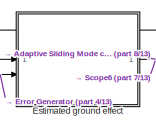
[diagram: root canvas - part 1/13, top center region]
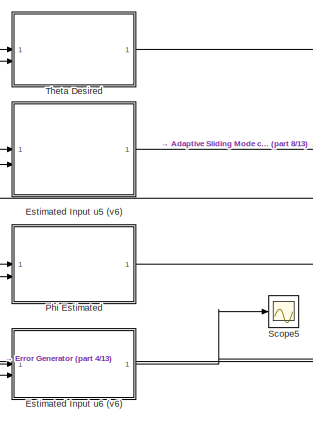
[diagram: root canvas - part 2/13, top center region]
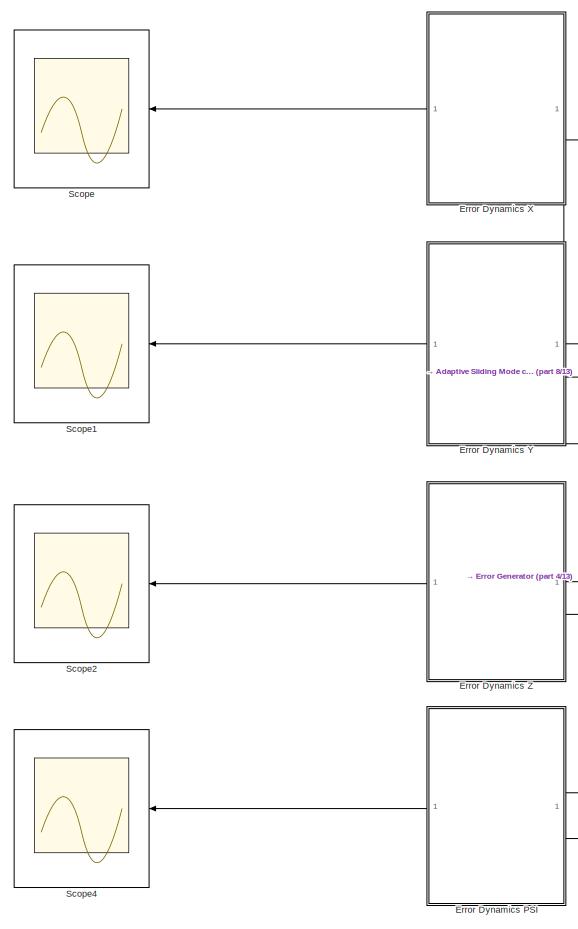
[diagram: root canvas - part 3/13, top left region]
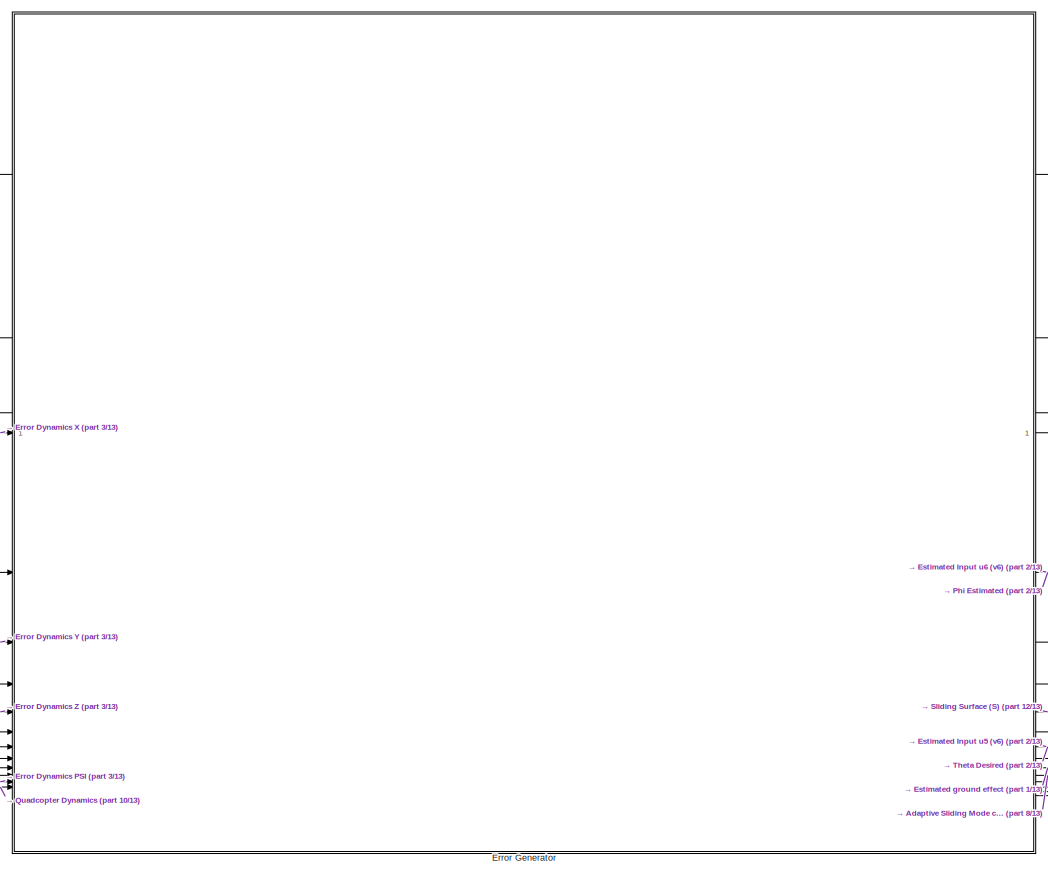
[diagram: root canvas - part 4/13, top left region]
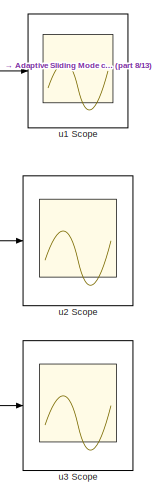
[diagram: root canvas - part 5/13, central region]
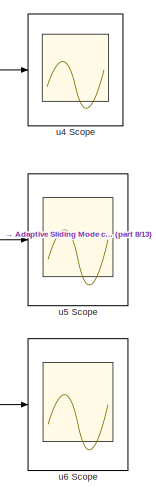
[diagram: root canvas - part 6/13, middle right region]
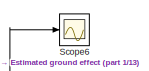
[diagram: root canvas - part 7/13, central region]
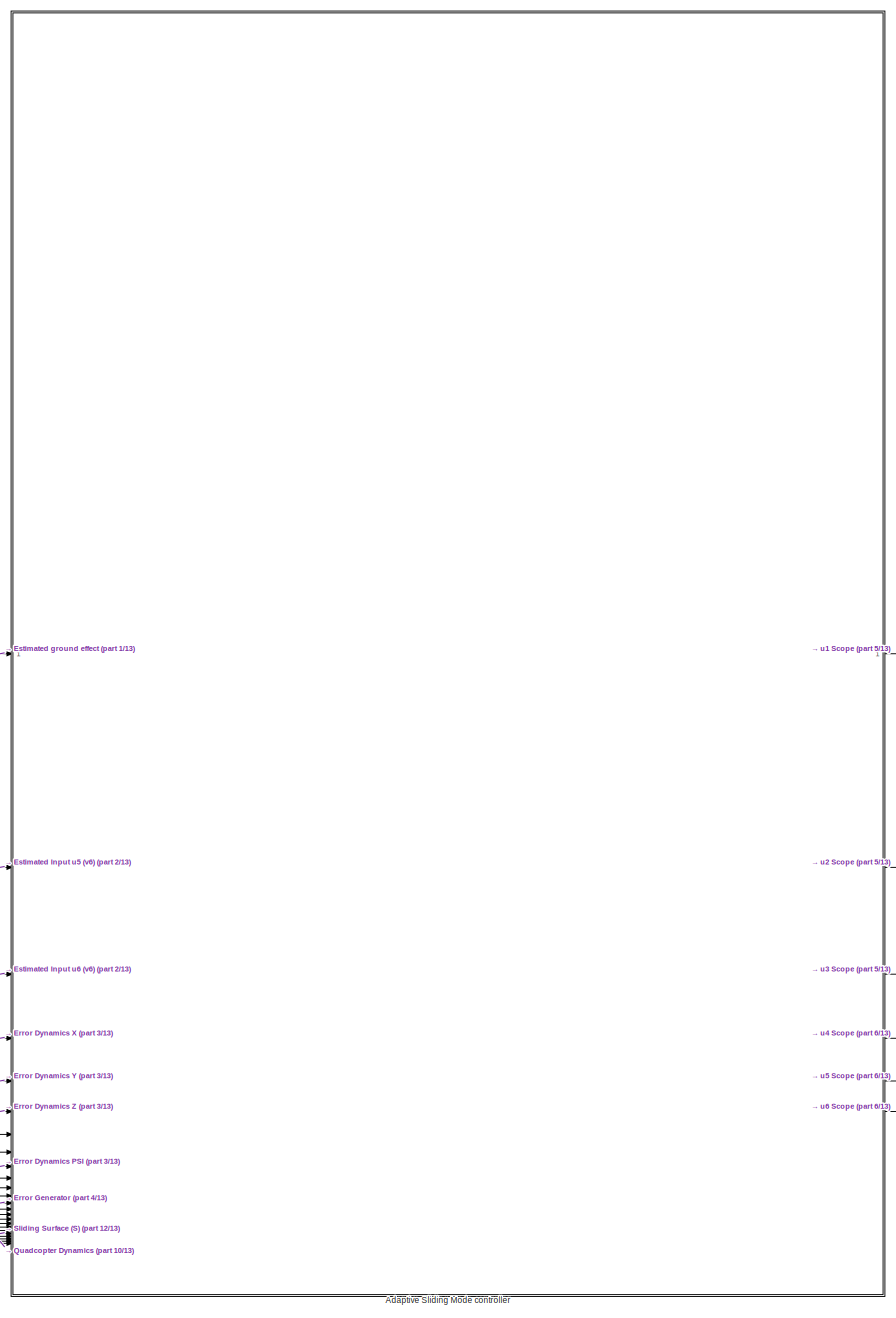
[diagram: root canvas - part 8/13, central region]
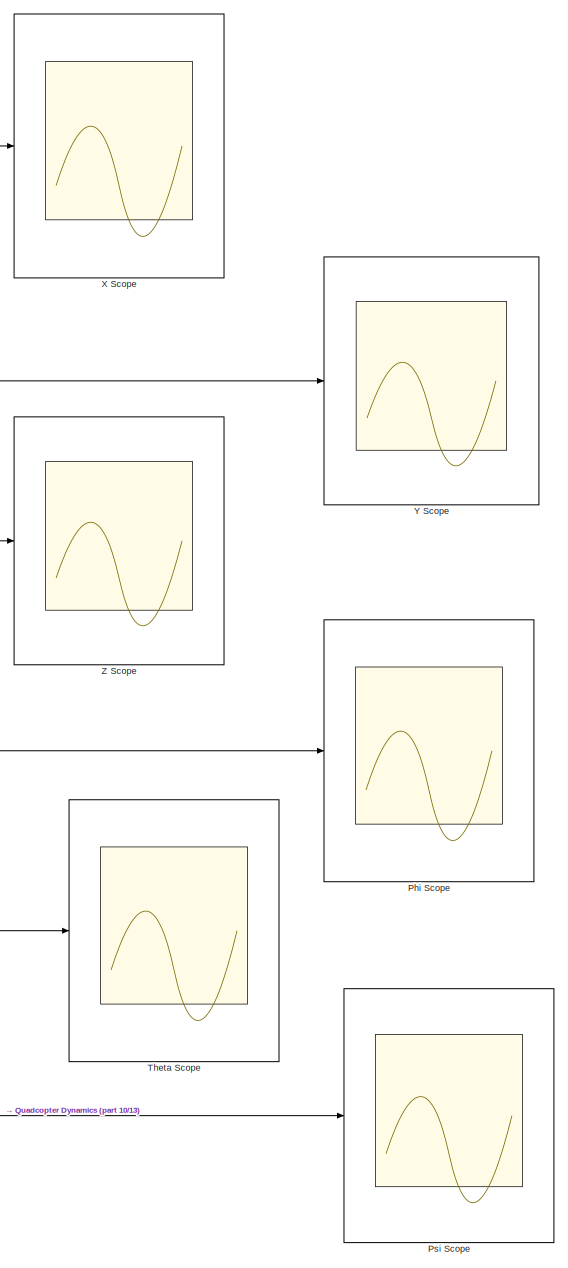
[diagram: root canvas - part 9/13, middle right region]
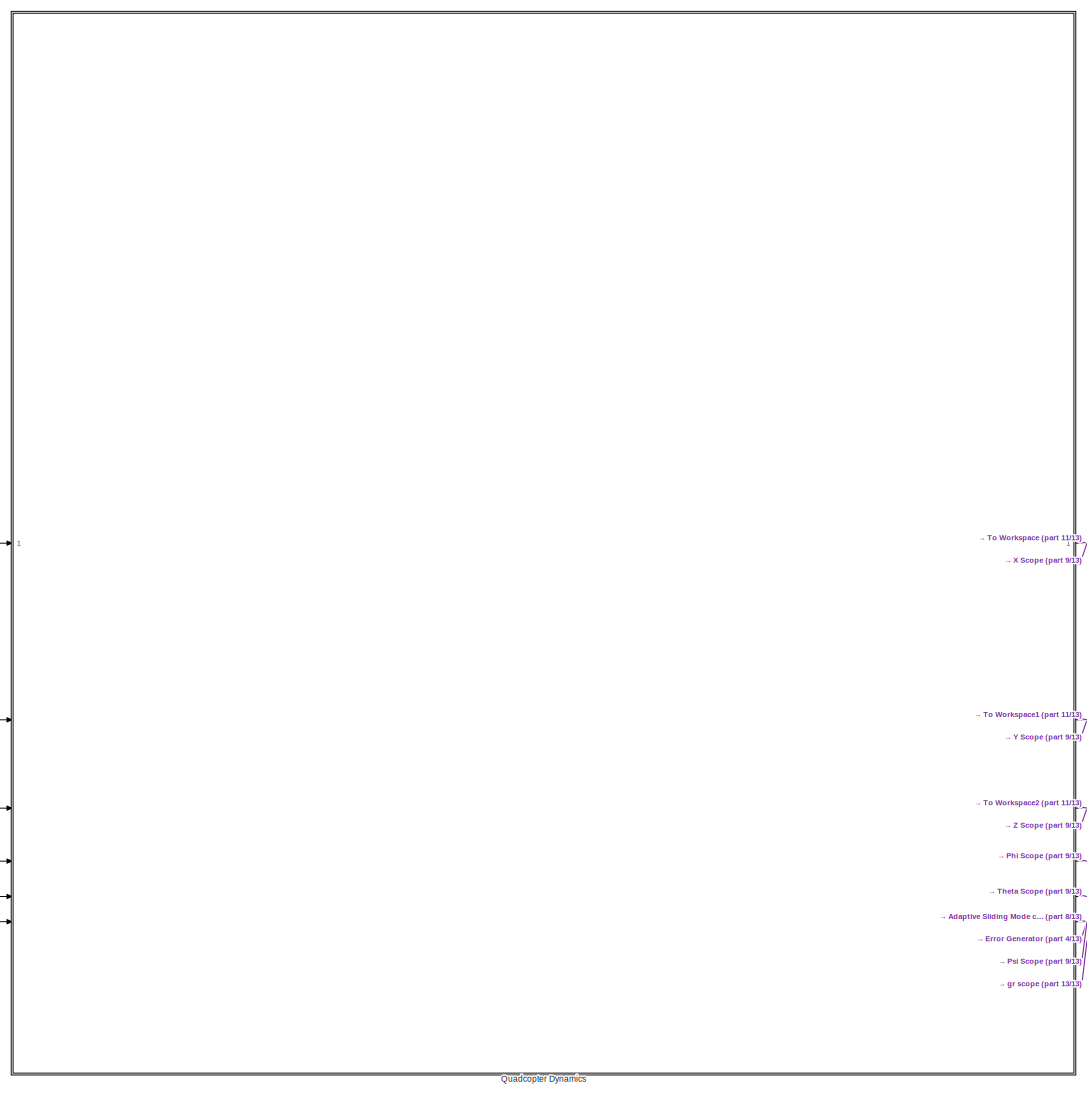
[diagram: root canvas - part 10/13, middle right region]
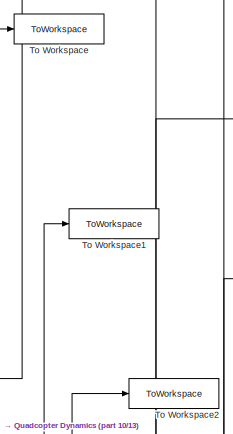
[diagram: root canvas - part 11/13, middle right region]
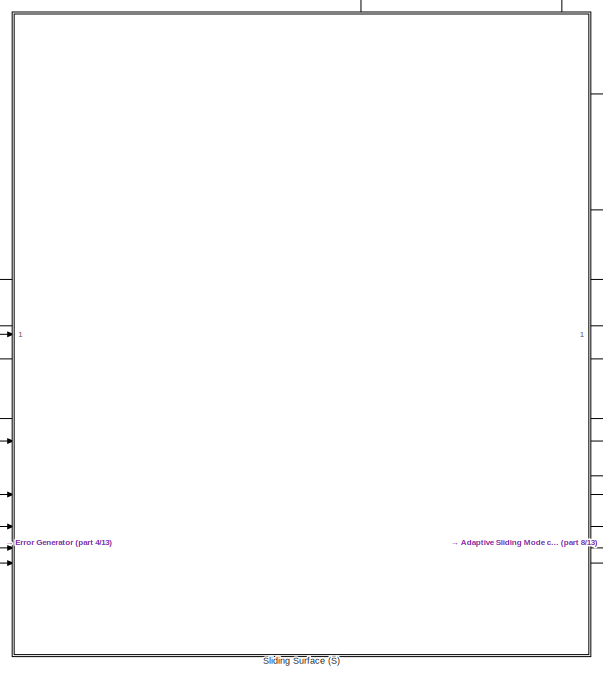
[diagram: root canvas - part 12/13, bottom center region]
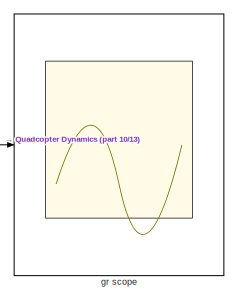
[diagram: root canvas - part 13/13, bottom right region]
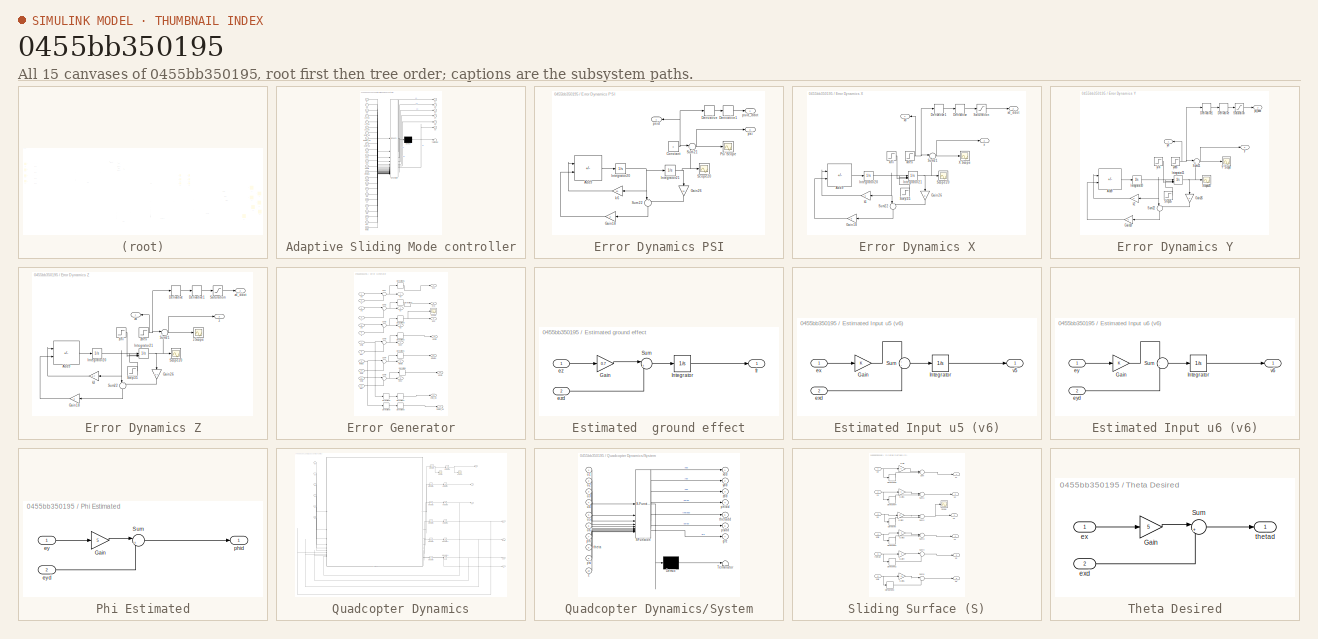
[diagram: thumbnail index - all 15 canvases of the model, root first then tree order]
MODEL slx_0455bb350195
KIND model
CONFIG AbsTol = auto
CONFIG EnableMultiTasking = off
CONFIG FixedStep = 0.1
CONFIG MaxStep = auto
CONFIG MinStep = auto
CONFIG RelTol = 1e-3
CONFIG SampleTimeConstraint = Unconstrained
CONFIG SolverName = FixedStepAuto
CONFIG StartTime = 0.0
CONFIG StopTime = 30
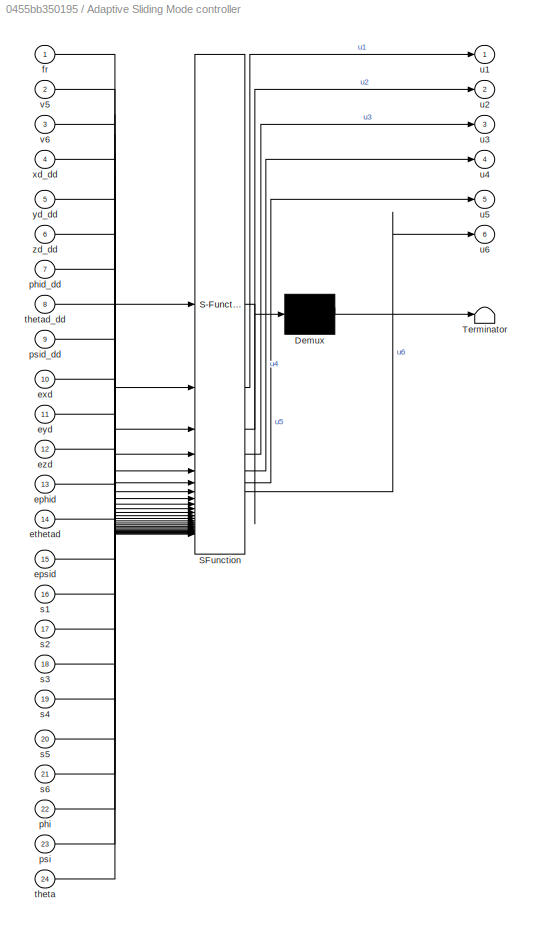
BLOCK [SubSystem] Adaptive Sliding Mode controller
  ErrorFcn = Stateflow.Translate.translate
  LibrarySourceBlock = simulink/User-Defined\nFunctions/MATLAB Function
  PermitHierarchicalResolution = ExplicitOnly
  SFBlockType = MATLAB Function
  TreatAsAtomicUnit = on
BLOCK [Demux] Adaptive Sliding Mode controller/ Demux 
  Outputs = 1
BLOCK [S-Function] Adaptive Sliding Mode controller/ SFunction 
  EnableBusSupport = on
  FunctionName = sf_sfun
  PortCounts = [24 7]
  SFcnIsStateOwnerBlock = off
  SFunctionDeploymentMode = off
  Tag = Stateflow S-Function 3
BLOCK [Terminator] Adaptive Sliding Mode controller/ Terminator 
BLOCK [Inport] Adaptive Sliding Mode controller/ephid
  Port = 13
BLOCK [Inport] Adaptive Sliding Mode controller/epsid
  Port = 15
BLOCK [Inport] Adaptive Sliding Mode controller/ethetad
  Port = 14
BLOCK [Inport] Adaptive Sliding Mode controller/exd
  Port = 10
BLOCK [Inport] Adaptive Sliding Mode controller/eyd
  Port = 11
BLOCK [Inport] Adaptive Sliding Mode controller/ezd
  Port = 12
BLOCK [Inport] Adaptive Sliding Mode controller/fr
BLOCK [Inport] Adaptive Sliding Mode controller/phi
  Port = 22
BLOCK [Inport] Adaptive Sliding Mode controller/phid_dd
  Port = 7
BLOCK [Inport] Adaptive Sliding Mode controller/psi
  Port = 23
BLOCK [Inport] Adaptive Sliding Mode controller/psid_dd
  Port = 9
BLOCK [Inport] Adaptive Sliding Mode controller/s1
  Port = 16
BLOCK [Inport] Adaptive Sliding Mode controller/s2
  Port = 17
BLOCK [Inport] Adaptive Sliding Mode controller/s3
  Port = 18
BLOCK [Inport] Adaptive Sliding Mode controller/s4
  Port = 19
BLOCK [Inport] Adaptive Sliding Mode controller/s5
  Port = 20
BLOCK [Inport] Adaptive Sliding Mode controller/s6
  Port = 21
BLOCK [Inport] Adaptive Sliding Mode controller/theta
  Port = 24
BLOCK [Inport] Adaptive Sliding Mode controller/thetad_dd
  Port = 8
BLOCK [Outport] Adaptive Sliding Mode controller/u1
BLOCK [Outport] Adaptive Sliding Mode controller/u2
  Port = 2
BLOCK [Outport] Adaptive Sliding Mode controller/u3
  Port = 3
BLOCK [Outport] Adaptive Sliding Mode controller/u4
  Port = 4
BLOCK [Outport] Adaptive Sliding Mode controller/u5
  Port = 5
BLOCK [Outport] Adaptive Sliding Mode controller/u6
  Port = 6
BLOCK [Inport] Adaptive Sliding Mode controller/v5
  Port = 2
BLOCK [Inport] Adaptive Sliding Mode controller/v6
  Port = 3
BLOCK [Inport] Adaptive Sliding Mode controller/xd_dd
  Port = 4
BLOCK [Inport] Adaptive Sliding Mode controller/yd_dd
  Port = 5
BLOCK [Inport] Adaptive Sliding Mode controller/zd_dd
  Port = 6
BLOCK [SubSystem] Error Dynamics PSI
  PortSchema = {"entries":[{"content":{"sides":[{"content":{"connectorIds":["Out3"]},"type":"ConnectorPlacement.EquallySpacedRectSide","uuid":"6ff76342-8998-4651-836f-b3548aab8e65"},{"content":{"connectorIds":["Out1","Out2"],"side":"RIGHT"},"type":"ConnectorPlacement.EquallySpacedRectSide","uuid":"ba3c50f9-7a2f-41a1-a732-e8b3bac2c00e"},{"content":{"side":"TOP"},"type":"ConnectorPlacement.EquallySpacedRectSide","...<+230ch>
BLOCK [Sum] Error Dynamics PSI/Add9
  IconShape = rectangular
  Inputs = --
BLOCK [Constant] Error Dynamics PSI/Constant
  Value = 0
BLOCK [Derivative] Error Dynamics PSI/Derivative
BLOCK [Derivative] Error Dynamics PSI/Derivative1
BLOCK [Gain] Error Dynamics PSI/Gain18
  NameLocation = top
BLOCK [Gain] Error Dynamics PSI/Gain26
  Gain = 10
  NameLocation = right
BLOCK [Integrator] Error Dynamics PSI/Integrator20
BLOCK [Integrator] Error Dynamics PSI/Integrator21
  InitialCondition = 0.5235
BLOCK [Scope] Error Dynamics PSI/Psi Scope
  Floating = off
  NumInputPorts = 1
  ScopeSpecificationString = Simulink.scopes.TimeScopeBlockCfg('CurrentConfiguration', extmgr.ConfigurationSet(extmgr.Configuration('Core','General UI',true),extmgr.Configuration('Core','Source UI',true),extmgr.Configuration('Sources','WiredSimulink',true),extmgr.Configuration('Visuals','Time Domain',true,'SerializedDisplays',{struct('MinYLimReal','-0.06544','MaxYLimReal','0.58894','YLabelReal','','MinYLimMag','0.00000','MaxY...<+1358ch>
BLOCK [Scope] Error Dynamics PSI/Scope20
  Floating = off
  NumInputPorts = 1
  ScopeSpecificationString = Simulink.scopes.TimeScopeBlockCfg('CurrentConfiguration', extmgr.ConfigurationSet(extmgr.Configuration('Core','General UI',true),extmgr.Configuration('Core','Source UI',true),extmgr.Configuration('Sources','WiredSimulink',true,'DataLoggingVariableName','ScopeData1'),extmgr.Configuration('Visuals','Time Domain',true,'SerializedDisplays',{struct('MinYLimReal','-0.06544','MaxYLimReal','0.58894','YLab...<+1371ch>
BLOCK [Sum] Error Dynamics PSI/Sum21
  Inputs = |++
BLOCK [Sum] Error Dynamics PSI/Sum22
  Inputs = |++
  NameLocation = left
BLOCK [Gain] Error Dynamics PSI/k6
  Gain = 10
  NameLocation = top
BLOCK [Outport] Error Dynamics PSI/psi
  Port = 3
BLOCK [Outport] Error Dynamics PSI/psid
  NameLocation = top
BLOCK [Outport] Error Dynamics PSI/psid_ddot
  Port = 2
BLOCK [SubSystem] Error Dynamics X
  PortSchema = {"entries":[{"content":{"sides":[{"content":{"connectorIds":["Out3"]},"type":"ConnectorPlacement.EquallySpacedRectSide","uuid":"22545104-e9c6-42c1-9867-858d35d84d65"},{"content":{"connectorIds":["Out1","Out2"],"side":"RIGHT"},"type":"ConnectorPlacement.EquallySpacedRectSide","uuid":"13e23cfd-25ed-4968-b510-5096e9888b79"},{"content":{"side":"TOP"},"type":"ConnectorPlacement.EquallySpacedRectSide","...<+230ch>
BLOCK [Sum] Error Dynamics X/Add9
  IconShape = rectangular
  Inputs = --
BLOCK [Derivative] Error Dynamics X/Derivative
BLOCK [Derivative] Error Dynamics X/Derivative1
BLOCK [Gain] Error Dynamics X/Gain18
  Gain = 5
  NameLocation = top
BLOCK [Gain] Error Dynamics X/Gain26
  NameLocation = right
BLOCK [Integrator] Error Dynamics X/Integrator20
BLOCK [Integrator] Error Dynamics X/Integrator21
  ExternalReset = rising
  InitialConditionSource = external
BLOCK [Saturate] Error Dynamics X/Saturation
  LowerLimit = -100
  UpperLimit = 100
BLOCK [Scope] Error Dynamics X/Scope20
  Floating = off
  NumInputPorts = 1
  ScopeSpecificationString = Simulink.scopes.TimeScopeBlockCfg('CurrentConfiguration', extmgr.ConfigurationSet(extmgr.Configuration('Core','General UI',true),extmgr.Configuration('Core','Source UI',true),extmgr.Configuration('Sources','WiredSimulink',true,'DataLoggingVariableName','ScopeData1'),extmgr.Configuration('Visuals','Time Domain',true,'SerializedDisplays',{struct('MinYLimReal','-13.75','MaxYLimReal','23.75','YLabelRe...<+1359ch>  <repeated x3 — deduplicated; at blocks: Scope20>
BLOCK [Step] Error Dynamics X/Step35
  SampleTime = 0
  Time = 15
BLOCK [Sum] Error Dynamics X/Sum21
  Inputs = |++
BLOCK [Sum] Error Dynamics X/Sum22
  Inputs = |++
  NameLocation = left
BLOCK [Scope] Error Dynamics X/X Scope
  Floating = off
  NumInputPorts = 1
  ScopeSpecificationString = Simulink.scopes.TimeScopeBlockCfg('CurrentConfiguration', extmgr.ConfigurationSet(extmgr.Configuration('Core','General UI',true),extmgr.Configuration('Core','Source UI',true),extmgr.Configuration('Sources','WiredSimulink',true),extmgr.Configuration('Visuals','Time Domain',true,'SerializedDisplays',{struct('MinYLimReal','8.75','MaxYLimReal','21.25','YLabelReal','','MinYLimMag','8.75','MaxYLimMag','...<+1336ch>
BLOCK [Gain] Error Dynamics X/k1
  NameLocation = top
BLOCK [Outport] Error Dynamics X/x
  Port = 3
BLOCK [Outport] Error Dynamics X/xd
  NameLocation = top
BLOCK [Outport] Error Dynamics X/xd_ddot
  Port = 2
BLOCK [Step] Error Dynamics X/xdes
  After = 0
  Before = 20
  SampleTime = 0
  Time = 15
BLOCK [Step] Error Dynamics X/xini
  After = 20
  Before = -10
  SampleTime = 0
  Time = 15
BLOCK [SubSystem] Error Dynamics Y
  PortSchema = {"entries":[{"content":{"sides":[{"content":{"connectorIds":["Out3"]},"type":"ConnectorPlacement.EquallySpacedRectSide","uuid":"22545104-e9c6-42c1-9867-858d35d84d65"},{"content":{"connectorIds":["Out1","Out2"],"side":"RIGHT"},"type":"ConnectorPlacement.EquallySpacedRectSide","uuid":"13e23cfd-25ed-4968-b510-5096e9888b79"},{"content":{"side":"TOP"},"type":"ConnectorPlacement.EquallySpacedRectSide","...<+230ch>
BLOCK [Sum] Error Dynamics Y/Add9
  IconShape = rectangular
  Inputs = --
BLOCK [Derivative] Error Dynamics Y/Derivative
BLOCK [Derivative] Error Dynamics Y/Derivative1
BLOCK [Gain] Error Dynamics Y/Gain18
  Gain = 5
  NameLocation = top
BLOCK [Gain] Error Dynamics Y/Gain26
  NameLocation = right
BLOCK [Integrator] Error Dynamics Y/Integrator20
BLOCK [Integrator] Error Dynamics Y/Integrator21
  ExternalReset = rising
  InitialConditionSource = external
BLOCK [Saturate] Error Dynamics Y/Saturation
  LowerLimit = -100
  UpperLimit = 100
BLOCK [Scope] Error Dynamics Y/Scope20
  Floating = off
  NumInputPorts = 1
BLOCK [Step] Error Dynamics Y/Step35
  SampleTime = 0
  Time = 15
BLOCK [Sum] Error Dynamics Y/Sum21
  Inputs = |++
BLOCK [Sum] Error Dynamics Y/Sum22
  Inputs = |++
  NameLocation = left
BLOCK [Scope] Error Dynamics Y/Y Scope
  Floating = off
  NumInputPorts = 1
  ScopeSpecificationString = Simulink.scopes.TimeScopeBlockCfg('CurrentConfiguration', extmgr.ConfigurationSet(extmgr.Configuration('Core','General UI',true),extmgr.Configuration('Core','Source UI',true),extmgr.Configuration('Sources','WiredSimulink',true),extmgr.Configuration('Visuals','Time Domain',true,'SerializedDisplays',{struct('MinYLimReal','-12.5','MaxYLimReal','12.5','YLabelReal','','MinYLimMag','0.00000','MaxYLimMag...<+1340ch>
BLOCK [Gain] Error Dynamics Y/k2
  NameLocation = top
BLOCK [Outport] Error Dynamics Y/y
  Port = 3
BLOCK [Outport] Error Dynamics Y/yd
  NameLocation = top
BLOCK [Outport] Error Dynamics Y/yd_ddot
  Port = 2
BLOCK [Step] Error Dynamics Y/ydes
  After = 0
  Before = -10
  SampleTime = 0
  Time = 15
BLOCK [Step] Error Dynamics Y/yini
  After = -10
  Before = 20
  SampleTime = 0
  Time = 15
BLOCK [SubSystem] Error Dynamics Z
  PortSchema = {"entries":[{"content":{"sides":[{"content":{"connectorIds":["Out3"]},"type":"ConnectorPlacement.EquallySpacedRectSide","uuid":"6ff76342-8998-4651-836f-b3548aab8e65"},{"content":{"connectorIds":["Out1","Out2"],"side":"RIGHT"},"type":"ConnectorPlacement.EquallySpacedRectSide","uuid":"ba3c50f9-7a2f-41a1-a732-e8b3bac2c00e"},{"content":{"side":"TOP"},"type":"ConnectorPlacement.EquallySpacedRectSide","...<+230ch>
BLOCK [Sum] Error Dynamics Z/Add9
  IconShape = rectangular
  Inputs = --
BLOCK [Derivative] Error Dynamics Z/Derivative
BLOCK [Derivative] Error Dynamics Z/Derivative1
BLOCK [Gain] Error Dynamics Z/Gain18
  Gain = 5
  NameLocation = top
BLOCK [Gain] Error Dynamics Z/Gain26
  Gain = 0.7
  NameLocation = right
BLOCK [Integrator] Error Dynamics Z/Integrator20
BLOCK [Integrator] Error Dynamics Z/Integrator21
  ExternalReset = rising
  InitialConditionSource = external
BLOCK [Saturate] Error Dynamics Z/Saturation
  LowerLimit = -100
  UpperLimit = 100
BLOCK [Scope] Error Dynamics Z/Scope20
  Floating = off
  NumInputPorts = 1
BLOCK [Step] Error Dynamics Z/Step35
  SampleTime = 0
  Time = 15
BLOCK [Sum] Error Dynamics Z/Sum21
  Inputs = |++
BLOCK [Sum] Error Dynamics Z/Sum22
  Inputs = |++
  NameLocation = left
BLOCK [Gain] Error Dynamics Z/k3
  Gain = 0.7
  NameLocation = top
BLOCK [Outport] Error Dynamics Z/z
  Port = 3
BLOCK [Scope] Error Dynamics Z/z Scope
  Floating = off
  NumInputPorts = 1
  ScopeSpecificationString = Simulink.scopes.TimeScopeBlockCfg('CurrentConfiguration', extmgr.ConfigurationSet(extmgr.Configuration('Core','General UI',true),extmgr.Configuration('Core','Source UI',true),extmgr.Configuration('Sources','WiredSimulink',true),extmgr.Configuration('Visuals','Time Domain',true,'SerializedDisplays',{struct('MinYLimReal','8.75','MaxYLimReal','21.25','YLabelReal','','MinYLimMag','8.75','MaxYLimMag','...<+1336ch>
BLOCK [Outport] Error Dynamics Z/zd
  NameLocation = top
BLOCK [Outport] Error Dynamics Z/zd_ddot
  Port = 2
BLOCK [Step] Error Dynamics Z/zdes
  After = 0
  Before = 10
  SampleTime = 0
  Time = 15
BLOCK [Step] Error Dynamics Z/zini
  After = 010
  Before = 10
  SampleTime = 0
  Time = 15
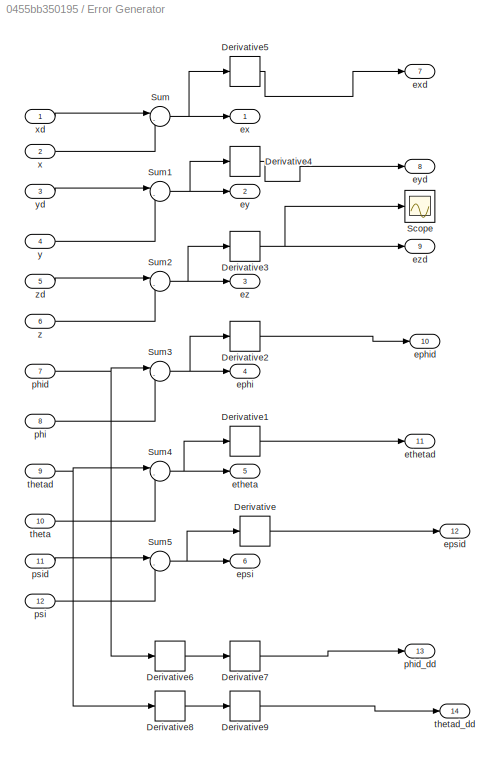
BLOCK [SubSystem] Error Generator
BLOCK [Derivative] Error Generator/Derivative
BLOCK [Derivative] Error Generator/Derivative1
BLOCK [Derivative] Error Generator/Derivative2
BLOCK [Derivative] Error Generator/Derivative3
BLOCK [Derivative] Error Generator/Derivative4
BLOCK [Derivative] Error Generator/Derivative5
BLOCK [Derivative] Error Generator/Derivative6
BLOCK [Derivative] Error Generator/Derivative7
BLOCK [Derivative] Error Generator/Derivative8
BLOCK [Derivative] Error Generator/Derivative9
BLOCK [Scope] Error Generator/Scope
  Floating = off
  NumInputPorts = 1
  ScopeSpecificationString = Simulink.scopes.TimeScopeBlockCfg('CurrentConfiguration', extmgr.ConfigurationSet(extmgr.Configuration('Core','General UI',true),extmgr.Configuration('Core','Source UI',true),extmgr.Configuration('Sources','WiredSimulink',true,'DataLoggingVariableName','ScopeData10'),extmgr.Configuration('Visuals','Time Domain',true,'SerializedDisplays',{struct('MinYLimReal','-23.29467','MaxYLimReal','113.69905','...<+1381ch>
BLOCK [Sum] Error Generator/Sum
  Inputs = |-+
BLOCK [Sum] Error Generator/Sum1
  Inputs = |-+
BLOCK [Sum] Error Generator/Sum2
  Inputs = |-+
BLOCK [Sum] Error Generator/Sum3
  Inputs = |-+
BLOCK [Sum] Error Generator/Sum4
  Inputs = |-+
BLOCK [Sum] Error Generator/Sum5
  Inputs = |-+
BLOCK [Outport] Error Generator/ephi
  Port = 4
BLOCK [Outport] Error Generator/ephid
  Port = 10
BLOCK [Outport] Error Generator/epsi
  Port = 6
BLOCK [Outport] Error Generator/epsid
  Port = 12
BLOCK [Outport] Error Generator/etheta
  Port = 5
BLOCK [Outport] Error Generator/ethetad
  Port = 11
BLOCK [Outport] Error Generator/ex
BLOCK [Outport] Error Generator/exd
  Port = 7
BLOCK [Outport] Error Generator/ey
  Port = 2
BLOCK [Outport] Error Generator/eyd
  Port = 8
BLOCK [Outport] Error Generator/ez
  Port = 3
BLOCK [Outport] Error Generator/ezd
  Port = 9
BLOCK [Inport] Error Generator/phi
  Port = 8
BLOCK [Inport] Error Generator/phid
  Port = 7
BLOCK [Outport] Error Generator/phid_dd
  Port = 13
BLOCK [Inport] Error Generator/psi
  Port = 12
BLOCK [Inport] Error Generator/psid
  Port = 11
BLOCK [Inport] Error Generator/theta
  Port = 10
BLOCK [Inport] Error Generator/thetad
  Port = 9
BLOCK [Outport] Error Generator/thetad_dd
  Port = 14
BLOCK [Inport] Error Generator/x
  Port = 2
BLOCK [Inport] Error Generator/xd
BLOCK [Inport] Error Generator/y
  Port = 4
BLOCK [Inport] Error Generator/yd
  Port = 3
BLOCK [Inport] Error Generator/z
  Port = 6
BLOCK [Inport] Error Generator/zd
  Port = 5
BLOCK [SubSystem] Estimated  ground effect
BLOCK [Gain] Estimated  ground effect/Gain
  Gain = 0.7
BLOCK [Integrator] Estimated  ground effect/Integrator
BLOCK [Sum] Estimated  ground effect/Sum
  Inputs = |++
BLOCK [Inport] Estimated  ground effect/ez
BLOCK [Inport] Estimated  ground effect/ezd
  Port = 2
BLOCK [Outport] Estimated  ground effect/fr
BLOCK [SubSystem] Estimated Input u5 (v6)
BLOCK [Gain] Estimated Input u5 (v6)/Gain
BLOCK [Integrator] Estimated Input u5 (v6)/Integrator
BLOCK [Sum] Estimated Input u5 (v6)/Sum
  Inputs = --
BLOCK [Inport] Estimated Input u5 (v6)/ex
BLOCK [Inport] Estimated Input u5 (v6)/exd
  Port = 2
BLOCK [Outport] Estimated Input u5 (v6)/v5
BLOCK [SubSystem] Estimated Input u6 (v6)
BLOCK [Gain] Estimated Input u6 (v6)/Gain
BLOCK [Integrator] Estimated Input u6 (v6)/Integrator
BLOCK [Sum] Estimated Input u6 (v6)/Sum
  Inputs = --
BLOCK [Inport] Estimated Input u6 (v6)/ey
BLOCK [Inport] Estimated Input u6 (v6)/eyd
  Port = 2
BLOCK [Outport] Estimated Input u6 (v6)/v6
BLOCK [SubSystem] Phi Estimated
BLOCK [Gain] Phi Estimated/Gain
  Gain = 5
BLOCK [Sum] Phi Estimated/Sum
  Inputs = |++
BLOCK [Inport] Phi Estimated/ey
BLOCK [Inport] Phi Estimated/eyd
  Port = 2
BLOCK [Outport] Phi Estimated/phid
BLOCK [Scope] Phi Scope
  Floating = off
  NumInputPorts = 1
  ScopeSpecificationString = Simulink.scopes.TimeScopeBlockCfg('CurrentConfiguration', extmgr.ConfigurationSet(extmgr.Configuration('Core','General UI',true),extmgr.Configuration('Core','Source UI',true),extmgr.Configuration('Sources','WiredSimulink',true,'DataLoggingVariableName','ScopeData8'),extmgr.Configuration('Visuals','Time Domain',true,'SerializedDisplays',{struct('MinYLimReal','-1.87964','MaxYLimReal','1.90926','YLab...<+1380ch>
BLOCK [Scope] Psi Scope
  Floating = off
  NumInputPorts = 1
  ScopeSpecificationString = Simulink.scopes.TimeScopeBlockCfg('CurrentConfiguration', extmgr.ConfigurationSet(extmgr.Configuration('Core','General UI',true),extmgr.Configuration('Core','Source UI',true),extmgr.Configuration('Sources','WiredSimulink',true,'DataLoggingVariableName','ScopeData42'),extmgr.Configuration('Visuals','Time Domain',true,'SerializedDisplays',{struct('MinYLimReal','-0.06544','MaxYLimReal','0.58894','YLa...<+1412ch>
BLOCK [SubSystem] Quadcopter Dynamics
BLOCK [Integrator] Quadcopter Dynamics/Integrator
  LowerSaturationLimit = -10
  UpperSaturationLimit = 10
BLOCK [Integrator] Quadcopter Dynamics/Integrator1
BLOCK [Integrator] Quadcopter Dynamics/Integrator10
  InitialCondition = 0.5235
  LowerSaturationLimit = -3.14
  UpperSaturationLimit = 3.14
  WrapState = on
BLOCK [Integrator] Quadcopter Dynamics/Integrator11
  InitialCondition = 0.5235
BLOCK [Integrator] Quadcopter Dynamics/Integrator2
BLOCK [Integrator] Quadcopter Dynamics/Integrator3
BLOCK [Integrator] Quadcopter Dynamics/Integrator4
BLOCK [Integrator] Quadcopter Dynamics/Integrator5
BLOCK [Integrator] Quadcopter Dynamics/Integrator6
  InitialCondition = 10
  LowerSaturationLimit = 0
  UpperSaturationLimit = 10
BLOCK [Integrator] Quadcopter Dynamics/Integrator7
  InitialCondition = 10
BLOCK [Integrator] Quadcopter Dynamics/Integrator8
  InitialCondition = 20
BLOCK [Integrator] Quadcopter Dynamics/Integrator9
  InitialCondition = 0.5235
  LowerSaturationLimit = -3.14
  UpperSaturationLimit = 3.14
  WrapState = on
  WrappedStateLowerValue = -pi/2
  WrappedStateUpperValue = pi/2
BLOCK [Scope] Quadcopter Dynamics/Scope
  Floating = off
  NumInputPorts = 1
  ScopeSpecificationString = Simulink.scopes.TimeScopeBlockCfg('CurrentConfiguration', extmgr.ConfigurationSet(extmgr.Configuration('Core','General UI',true),extmgr.Configuration('Core','Source UI',true),extmgr.Configuration('Sources','WiredSimulink',true,'DataLoggingVariableName','ScopeData1'),extmgr.Configuration('Visuals','Time Domain',true,'SerializedDisplays',{struct('MinYLimReal','-15.55325','MaxYLimReal','9.54618','YLa...<+1373ch>
BLOCK [Scope] Quadcopter Dynamics/Scope1
  Floating = off
  NumInputPorts = 1
  ScopeSpecificationString = Simulink.scopes.TimeScopeBlockCfg('CurrentConfiguration', extmgr.ConfigurationSet(extmgr.Configuration('Core','General UI',true),extmgr.Configuration('Core','Source UI',true),extmgr.Configuration('Sources','WiredSimulink',true,'DataLoggingVariableName','ScopeData2'),extmgr.Configuration('Visuals','Time Domain',true,'SerializedDisplays',{struct('MinYLimReal','-2.99998','MaxYLimReal','22.99999','YLa...<+1374ch>
BLOCK [SubSystem] Quadcopter Dynamics/System
  ErrorFcn = Stateflow.Translate.translate
  LibrarySourceBlock = simulink/User-Defined\nFunctions/MATLAB Function
  PermitHierarchicalResolution = ExplicitOnly
  SFBlockType = MATLAB Function
  TreatAsAtomicUnit = on
BLOCK [Demux] Quadcopter Dynamics/System/ Demux 
  Outputs = 1
BLOCK [S-Function] Quadcopter Dynamics/System/ SFunction 
  EnableBusSupport = on
  FunctionName = sf_sfun
  PortCounts = [10 8]
  SFcnIsStateOwnerBlock = off
  SFunctionDeploymentMode = off
  Tag = Stateflow S-Function 4
BLOCK [Terminator] Quadcopter Dynamics/System/ Terminator 
BLOCK [Outport] Quadcopter Dynamics/System/grz
  Port = 7
BLOCK [Inport] Quadcopter Dynamics/System/phi
  Port = 7
BLOCK [Outport] Quadcopter Dynamics/System/phidd
  Port = 4
BLOCK [Inport] Quadcopter Dynamics/System/psi
  Port = 9
BLOCK [Outport] Quadcopter Dynamics/System/psidd
  Port = 6
BLOCK [Inport] Quadcopter Dynamics/System/theta
  Port = 8
BLOCK [Outport] Quadcopter Dynamics/System/thetadd
  Port = 5
BLOCK [Inport] Quadcopter Dynamics/System/u1
BLOCK [Inport] Quadcopter Dynamics/System/u2
  Port = 2
BLOCK [Inport] Quadcopter Dynamics/System/u3
  Port = 3
BLOCK [Inport] Quadcopter Dynamics/System/u4
  Port = 4
BLOCK [Inport] Quadcopter Dynamics/System/u5
  Port = 5
BLOCK [Inport] Quadcopter Dynamics/System/u6
  Port = 6
BLOCK [Outport] Quadcopter Dynamics/System/xdd
BLOCK [Outport] Quadcopter Dynamics/System/ydd
  Port = 2
BLOCK [Inport] Quadcopter Dynamics/System/z
  Port = 10
BLOCK [Outport] Quadcopter Dynamics/System/zdd
  Port = 3
BLOCK [Outport] Quadcopter Dynamics/gr
  Port = 7
BLOCK [Outport] Quadcopter Dynamics/phi
  Port = 4
BLOCK [Outport] Quadcopter Dynamics/psi
  Port = 6
BLOCK [Outport] Quadcopter Dynamics/theta
  Port = 5
BLOCK [Inport] Quadcopter Dynamics/u1
BLOCK [Inport] Quadcopter Dynamics/u2
  Port = 2
BLOCK [Inport] Quadcopter Dynamics/u3
  Port = 3
BLOCK [Inport] Quadcopter Dynamics/u4
  Port = 4
BLOCK [Inport] Quadcopter Dynamics/u5
  Port = 5
BLOCK [Inport] Quadcopter Dynamics/u6
  Port = 6
BLOCK [Outport] Quadcopter Dynamics/x
BLOCK [Outport] Quadcopter Dynamics/y
  Port = 2
BLOCK [Outport] Quadcopter Dynamics/z
  Port = 3
BLOCK [Scope] Scope
  Floating = off
  NameLocation = top
  NumInputPorts = 1
  ScopeSpecificationString = Simulink.scopes.TimeScopeBlockCfg('CurrentConfiguration', extmgr.ConfigurationSet(extmgr.Configuration('Core','General UI',true),extmgr.Configuration('Core','Source UI',true),extmgr.Configuration('Sources','WiredSimulink',true,'DataLoggingVariableName','ScopeData3'),extmgr.Configuration('Visuals','Time Domain',true,'SerializedDisplays',{struct('MinYLimReal','-2.49999','MaxYLimReal','22.5','YLabelR...<+1365ch>
BLOCK [Scope] Scope1
  Floating = off
  NameLocation = top
  NumInputPorts = 1
  ScopeSpecificationString = Simulink.scopes.TimeScopeBlockCfg('CurrentConfiguration', extmgr.ConfigurationSet(extmgr.Configuration('Core','General UI',true),extmgr.Configuration('Core','Source UI',true),extmgr.Configuration('Sources','WiredSimulink',true,'DataLoggingVariableName','ScopeData4'),extmgr.Configuration('Visuals','Time Domain',true,'SerializedDisplays',{struct('MinYLimReal','-12.5','MaxYLimReal','12.5','YLabelReal...<+1359ch>
BLOCK [Scope] Scope2
  Floating = off
  NameLocation = top
  NumInputPorts = 1
  ScopeSpecificationString = Simulink.scopes.TimeScopeBlockCfg('CurrentConfiguration', extmgr.ConfigurationSet(extmgr.Configuration('Core','General UI',true),extmgr.Configuration('Core','Source UI',true),extmgr.Configuration('Sources','WiredSimulink',true,'DataLoggingVariableName','ScopeData5'),extmgr.Configuration('Visuals','Time Domain',true,'SerializedDisplays',{struct('MinYLimReal','-2.49964','MaxYLimReal','22.49996','YLa...<+1381ch>
BLOCK [Scope] Scope4
  Floating = off
  NameLocation = top
  NumInputPorts = 1
  ScopeSpecificationString = Simulink.scopes.TimeScopeBlockCfg('CurrentConfiguration', extmgr.ConfigurationSet(extmgr.Configuration('Core','General UI',true),extmgr.Configuration('Core','Source UI',true),extmgr.Configuration('Sources','WiredSimulink',true,'DataLoggingVariableName','ScopeData7'),extmgr.Configuration('Visuals','Time Domain',true,'SerializedDisplays',{struct('MinYLimReal','-0.06544','MaxYLimReal','0.58894','YLab...<+1379ch>
BLOCK [Scope] Scope5
  Floating = off
  NumInputPorts = 1
  ScopeSpecificationString = Simulink.scopes.TimeScopeBlockCfg('CurrentConfiguration', extmgr.ConfigurationSet(extmgr.Configuration('Core','General UI',true),extmgr.Configuration('Core','Source UI',true),extmgr.Configuration('Sources','WiredSimulink',true,'DataLoggingVariableName','ScopeData11'),extmgr.Configuration('Visuals','Time Domain',true,'SerializedDisplays',{struct('MinYLimReal','-4.28046','MaxYLimReal','3.49679','YLa...<+1383ch>
BLOCK [Scope] Scope6
  Floating = off
  NumInputPorts = 1
  ScopeSpecificationString = Simulink.scopes.TimeScopeBlockCfg('CurrentConfiguration', extmgr.ConfigurationSet(extmgr.Configuration('Core','General UI',true),extmgr.Configuration('Core','Source UI',true),extmgr.Configuration('Sources','WiredSimulink',true,'DataLoggingVariableName','ScopeData2'),extmgr.Configuration('Visuals','Time Domain',true,'SerializedDisplays',{struct('MinYLimReal','-0.49982','MaxYLimReal','4.49841','YLab...<+1383ch>
BLOCK [SubSystem] Sliding Surface (S)
BLOCK [Derivative] Sliding Surface (S)/Derivative
BLOCK [Derivative] Sliding Surface (S)/Derivative1
BLOCK [Derivative] Sliding Surface (S)/Derivative2
BLOCK [Derivative] Sliding Surface (S)/Derivative3
BLOCK [Derivative] Sliding Surface (S)/Derivative4
BLOCK [Derivative] Sliding Surface (S)/Derivative5
BLOCK [Gain] Sliding Surface (S)/Gain
BLOCK [Gain] Sliding Surface (S)/Gain1
BLOCK [Gain] Sliding Surface (S)/Gain2
  Gain = 0.7
BLOCK [Gain] Sliding Surface (S)/Gain3
  Gain = 5
BLOCK [Gain] Sliding Surface (S)/Gain4
  Gain = 5
BLOCK [Gain] Sliding Surface (S)/Gain5
  Gain = 10
BLOCK [Scope] Sliding Surface (S)/Scope
  Floating = off
  NumInputPorts = 1
  ScopeSpecificationString = Simulink.scopes.TimeScopeBlockCfg('CurrentConfiguration', extmgr.ConfigurationSet(extmgr.Configuration('Core','General UI',true),extmgr.Configuration('Core','Source UI',true),extmgr.Configuration('Sources','WiredSimulink',true,'DataLoggingVariableName','ScopeData9'),extmgr.Configuration('Visuals','Time Domain',true,'SerializedDisplays',{struct('MinYLimReal','-14.91261','MaxYLimReal','128.6434','YL...<+1369ch>
BLOCK [Sum] Sliding Surface (S)/Sum
  Inputs = |++
BLOCK [Sum] Sliding Surface (S)/Sum1
  Inputs = |++
BLOCK [Sum] Sliding Surface (S)/Sum2
  Inputs = |++
BLOCK [Sum] Sliding Surface (S)/Sum3
  Inputs = |++
BLOCK [Sum] Sliding Surface (S)/Sum4
  Inputs = |++
BLOCK [Sum] Sliding Surface (S)/Sum5
  Inputs = |++
BLOCK [Inport] Sliding Surface (S)/phie
  Port = 4
BLOCK [Inport] Sliding Surface (S)/psie
  Port = 6
BLOCK [Outport] Sliding Surface (S)/s1
BLOCK [Outport] Sliding Surface (S)/s2
  Port = 2
BLOCK [Outport] Sliding Surface (S)/s3
  Port = 3
BLOCK [Outport] Sliding Surface (S)/s4
  Port = 4
BLOCK [Outport] Sliding Surface (S)/s5
  Port = 5
BLOCK [Outport] Sliding Surface (S)/s6
  Port = 6
BLOCK [Inport] Sliding Surface (S)/thetae
  Port = 5
BLOCK [Inport] Sliding Surface (S)/xe
BLOCK [Inport] Sliding Surface (S)/ye
  Port = 2
BLOCK [Inport] Sliding Surface (S)/ze
  Port = 3
BLOCK [SubSystem] Theta Desired
BLOCK [Gain] Theta Desired/Gain
  Gain = 5
BLOCK [Sum] Theta Desired/Sum
  Inputs = |++
BLOCK [Inport] Theta Desired/ex
BLOCK [Inport] Theta Desired/exd
  Port = 2
BLOCK [Outport] Theta Desired/thetad
BLOCK [Scope] Theta Scope
  Floating = off
  NumInputPorts = 1
  ScopeSpecificationString = Simulink.scopes.TimeScopeBlockCfg('CurrentConfiguration', extmgr.ConfigurationSet(extmgr.Configuration('Core','General UI',true),extmgr.Configuration('Core','Source UI',true),extmgr.Configuration('Sources','WiredSimulink',true,'DataLoggingVariableName','ScopeData41'),extmgr.Configuration('Visuals','Time Domain',true,'SerializedDisplays',{struct('MinYLimReal','-3.75456','MaxYLimReal','3.9044','YLab...<+1377ch>
BLOCK [ToWorkspace] To Workspace
  FixptAsFi = on
  MaxDataPoints = inf
  SampleTime = -1
  SaveFormat = Timeseries
  VariableName = x
BLOCK [ToWorkspace] To Workspace1
  FixptAsFi = on
  MaxDataPoints = inf
  SampleTime = -1
  SaveFormat = Timeseries
  VariableName = y
BLOCK [ToWorkspace] To Workspace2
  FixptAsFi = on
  MaxDataPoints = inf
  SampleTime = -1
  SaveFormat = Timeseries
  VariableName = z
BLOCK [Scope] X Scope
  Floating = off
  NumInputPorts = 1
  ScopeSpecificationString = Simulink.scopes.TimeScopeBlockCfg('CurrentConfiguration', extmgr.ConfigurationSet(extmgr.Configuration('Core','General UI',true),extmgr.Configuration('Core','Source UI',true),extmgr.Configuration('Sources','WiredSimulink',true,'DataLoggingVariableName','ScopeData37'),extmgr.Configuration('Visuals','Time Domain',true,'SerializedDisplays',{struct('MinYLimReal','-2.8715','MaxYLimReal','22.67983','YLa...<+1383ch>
BLOCK [Scope] Y Scope
  Floating = off
  NumInputPorts = 1
  ScopeSpecificationString = Simulink.scopes.TimeScopeBlockCfg('CurrentConfiguration', extmgr.ConfigurationSet(extmgr.Configuration('Core','General UI',true),extmgr.Configuration('Core','Source UI',true),extmgr.Configuration('Sources','WiredSimulink',true,'DataLoggingVariableName','ScopeData38'),extmgr.Configuration('Visuals','Time Domain',true,'SerializedDisplays',{struct('MinYLimReal','-12.78057','MaxYLimReal','12.53117','Y...<+1387ch>
BLOCK [Scope] Z Scope
  Floating = off
  NumInputPorts = 1
  ScopeSpecificationString = Simulink.scopes.TimeScopeBlockCfg('CurrentConfiguration', extmgr.ConfigurationSet(extmgr.Configuration('Core','General UI',true),extmgr.Configuration('Core','Source UI',true),extmgr.Configuration('Sources','WiredSimulink',true,'DataLoggingVariableName','ScopeData39'),extmgr.Configuration('Visuals','Time Domain',true,'SerializedDisplays',{struct('MinYLimReal','-2.16094','MaxYLimReal','22.46233','YL...<+1420ch>
BLOCK [Scope] gr scope
  Floating = off
  NumInputPorts = 1
  ScopeSpecificationString = Simulink.scopes.TimeScopeBlockCfg('CurrentConfiguration', extmgr.ConfigurationSet(extmgr.Configuration('Core','General UI',true),extmgr.Configuration('Core','Source UI',true),extmgr.Configuration('Sources','WiredSimulink',true,'DataLoggingVariableName','ScopeData1'),extmgr.Configuration('Visuals','Time Domain',true,'SerializedDisplays',{struct('MinYLimReal','-0.62778','MaxYLimReal','5.65006','YLab...<+1382ch>
BLOCK [Scope] u1 Scope
  Floating = off
  NumInputPorts = 1
  ScopeSpecificationString = Simulink.scopes.TimeScopeBlockCfg('CurrentConfiguration', extmgr.ConfigurationSet(extmgr.Configuration('Core','General UI',true),extmgr.Configuration('Core','Source UI',true),extmgr.Configuration('Sources','WiredSimulink',true,'DataLoggingVariableName','ScopeData29'),extmgr.Configuration('Visuals','Time Domain',true,'SerializedDisplays',{struct('MinYLimReal','-3481.29059','MaxYLimReal','15882.1623...<+1421ch>
BLOCK [Scope] u2 Scope
  Floating = off
  NumInputPorts = 1
  ScopeSpecificationString = Simulink.scopes.TimeScopeBlockCfg('CurrentConfiguration', extmgr.ConfigurationSet(extmgr.Configuration('Core','General UI',true),extmgr.Configuration('Core','Source UI',true),extmgr.Configuration('Sources','WiredSimulink',true,'DataLoggingVariableName','ScopeData28'),extmgr.Configuration('Visuals','Time Domain',true,'SerializedDisplays',{struct('MinYLimReal','-32038.31088','MaxYLimReal','40844.733...<+1425ch>
BLOCK [Scope] u3 Scope
  Floating = off
  NumInputPorts = 1
  ScopeSpecificationString = Simulink.scopes.TimeScopeBlockCfg('CurrentConfiguration', extmgr.ConfigurationSet(extmgr.Configuration('Core','General UI',true),extmgr.Configuration('Core','Source UI',true),extmgr.Configuration('Sources','WiredSimulink',true,'DataLoggingVariableName','ScopeData1'),extmgr.Configuration('Visuals','Time Domain',true,'SerializedDisplays',{struct('MinYLimReal','-82153.53961','MaxYLimReal','64128.1746...<+1424ch>
BLOCK [Scope] u4 Scope
  Floating = off
  NumInputPorts = 1
  ScopeSpecificationString = Simulink.scopes.TimeScopeBlockCfg('CurrentConfiguration', extmgr.ConfigurationSet(extmgr.Configuration('Core','General UI',true),extmgr.Configuration('Core','Source UI',true),extmgr.Configuration('Sources','WiredSimulink',true,'DataLoggingVariableName','ScopeData25'),extmgr.Configuration('Visuals','Time Domain',true,'SerializedDisplays',{struct('MinYLimReal','-5.93571','MaxYLimReal','1.07143','YLa...<+1395ch>
BLOCK [Scope] u5 Scope
  Floating = off
  NumInputPorts = 1
  ScopeSpecificationString = Simulink.scopes.TimeScopeBlockCfg('CurrentConfiguration', extmgr.ConfigurationSet(extmgr.Configuration('Core','General UI',true),extmgr.Configuration('Core','Source UI',true),extmgr.Configuration('Sources','WiredSimulink',true,'DataLoggingVariableName','ScopeData26'),extmgr.Configuration('Visuals','Time Domain',true,'SerializedDisplays',{struct('MinYLimReal','-2398.42002','MaxYLimReal','8445.94521...<+1417ch>
BLOCK [Scope] u6 Scope
  Floating = off
  NumInputPorts = 1
  ScopeSpecificationString = Simulink.scopes.TimeScopeBlockCfg('CurrentConfiguration', extmgr.ConfigurationSet(extmgr.Configuration('Core','General UI',true),extmgr.Configuration('Core','Source UI',true),extmgr.Configuration('Sources','WiredSimulink',true,'DataLoggingVariableName','ScopeData6'),extmgr.Configuration('Visuals','Time Domain',true,'SerializedDisplays',{struct('MinYLimReal','-2646.91979','MaxYLimReal','13454.74492...<+1420ch>
NET Adaptive Sliding Mode controller:1 -> Quadcopter Dynamics:1, u1 Scope:1
NET Adaptive Sliding Mode controller:2 -> Quadcopter Dynamics:2, u2 Scope:1
NET Adaptive Sliding Mode controller:3 -> Quadcopter Dynamics:3, u3 Scope:1
NET Adaptive Sliding Mode controller:4 -> Quadcopter Dynamics:4, u4 Scope:1
NET Adaptive Sliding Mode controller:5 -> Quadcopter Dynamics:5, u5 Scope:1
NET Adaptive Sliding Mode controller:6 -> Quadcopter Dynamics:6, u6 Scope:1
LINE Error Dynamics PSI/Add9:1 -> Error Dynamics PSI/Integrator20:1
NET Error Dynamics PSI/Constant:1 -> Error Dynamics PSI/Derivative:1, Error Dynamics PSI/Sum21:1, Error Dynamics PSI/psid:1
LINE Error Dynamics PSI/Derivative1:1 -> Error Dynamics PSI/psid_ddot:1
LINE Error Dynamics PSI/Derivative:1 -> Error Dynamics PSI/Derivative1:1
LINE Error Dynamics PSI/Gain18:1 -> Error Dynamics PSI/Add9:2
LINE Error Dynamics PSI/Gain26:1 -> Error Dynamics PSI/Sum22:2
NET Error Dynamics PSI/Integrator20:1 -> Error Dynamics PSI/Integrator21:1, Error Dynamics PSI/Sum22:1, Error Dynamics PSI/k6:1
NET Error Dynamics PSI/Integrator21:1 -> Error Dynamics PSI/Gain26:1, Error Dynamics PSI/Scope20:1, Error Dynamics PSI/Sum21:2
NET Error Dynamics PSI/Sum21:1 -> Error Dynamics PSI/Psi Scope:1, Error Dynamics PSI/psi:1
LINE Error Dynamics PSI/Sum22:1 -> Error Dynamics PSI/Gain18:1
LINE Error Dynamics PSI/k6:1 -> Error Dynamics PSI/Add9:1
LINE Error Dynamics PSI:1 -> Error Generator:11
LINE Error Dynamics PSI:2 -> Adaptive Sliding Mode controller:9
LINE Error Dynamics PSI:3 -> Scope4:1
LINE Error Dynamics X/Add9:1 -> Error Dynamics X/Integrator20:1
LINE Error Dynamics X/Derivative1:1 -> Error Dynamics X/Derivative:1
LINE Error Dynamics X/Derivative:1 -> Error Dynamics X/Saturation:1
LINE Error Dynamics X/Gain18:1 -> Error Dynamics X/Add9:2
LINE Error Dynamics X/Gain26:1 -> Error Dynamics X/Sum22:2
NET Error Dynamics X/Integrator20:1 -> Error Dynamics X/Integrator21:1, Error Dynamics X/Sum22:1, Error Dynamics X/k1:1
NET Error Dynamics X/Integrator21:1 -> Error Dynamics X/Gain26:1, Error Dynamics X/Scope20:1, Error Dynamics X/Sum21:2
LINE Error Dynamics X/Saturation:1 -> Error Dynamics X/xd_ddot:1
LINE Error Dynamics X/Step35:1 -> Error Dynamics X/Integrator21:2
NET Error Dynamics X/Sum21:1 -> Error Dynamics X/X Scope:1, Error Dynamics X/x:1
LINE Error Dynamics X/Sum22:1 -> Error Dynamics X/Gain18:1
LINE Error Dynamics X/k1:1 -> Error Dynamics X/Add9:1
NET Error Dynamics X/xdes:1 -> Error Dynamics X/Derivative1:1, Error Dynamics X/Sum21:1, Error Dynamics X/xd:1
LINE Error Dynamics X/xini:1 -> Error Dynamics X/Integrator21:3
LINE Error Dynamics X:1 -> Error Generator:1
LINE Error Dynamics X:2 -> Adaptive Sliding Mode controller:4
LINE Error Dynamics X:3 -> Scope:1
LINE Error Dynamics Y/Add9:1 -> Error Dynamics Y/Integrator20:1
LINE Error Dynamics Y/Derivative1:1 -> Error Dynamics Y/Derivative:1
LINE Error Dynamics Y/Derivative:1 -> Error Dynamics Y/Saturation:1
LINE Error Dynamics Y/Gain18:1 -> Error Dynamics Y/Add9:2
LINE Error Dynamics Y/Gain26:1 -> Error Dynamics Y/Sum22:2
NET Error Dynamics Y/Integrator20:1 -> Error Dynamics Y/Integrator21:1, Error Dynamics Y/Sum22:1, Error Dynamics Y/k2:1
NET Error Dynamics Y/Integrator21:1 -> Error Dynamics Y/Gain26:1, Error Dynamics Y/Scope20:1, Error Dynamics Y/Sum21:2
LINE Error Dynamics Y/Saturation:1 -> Error Dynamics Y/yd_ddot:1
LINE Error Dynamics Y/Step35:1 -> Error Dynamics Y/Integrator21:2
NET Error Dynamics Y/Sum21:1 -> Error Dynamics Y/Y Scope:1, Error Dynamics Y/y:1
LINE Error Dynamics Y/Sum22:1 -> Error Dynamics Y/Gain18:1
LINE Error Dynamics Y/k2:1 -> Error Dynamics Y/Add9:1
NET Error Dynamics Y/ydes:1 -> Error Dynamics Y/Derivative1:1, Error Dynamics Y/Sum21:1, Error Dynamics Y/yd:1
LINE Error Dynamics Y/yini:1 -> Error Dynamics Y/Integrator21:3
LINE Error Dynamics Y:1 -> Error Generator:3
LINE Error Dynamics Y:2 -> Adaptive Sliding Mode controller:5
LINE Error Dynamics Y:3 -> Scope1:1
LINE Error Dynamics Z/Add9:1 -> Error Dynamics Z/Integrator20:1
LINE Error Dynamics Z/Derivative1:1 -> Error Dynamics Z/Saturation:1
LINE Error Dynamics Z/Derivative:1 -> Error Dynamics Z/Derivative1:1
LINE Error Dynamics Z/Gain18:1 -> Error Dynamics Z/Add9:2
LINE Error Dynamics Z/Gain26:1 -> Error Dynamics Z/Sum22:2
NET Error Dynamics Z/Integrator20:1 -> Error Dynamics Z/Integrator21:1, Error Dynamics Z/Sum22:1, Error Dynamics Z/k3:1
NET Error Dynamics Z/Integrator21:1 -> Error Dynamics Z/Gain26:1, Error Dynamics Z/Scope20:1, Error Dynamics Z/Sum21:2
LINE Error Dynamics Z/Saturation:1 -> Error Dynamics Z/zd_ddot:1
LINE Error Dynamics Z/Step35:1 -> Error Dynamics Z/Integrator21:2
NET Error Dynamics Z/Sum21:1 -> Error Dynamics Z/z Scope:1, Error Dynamics Z/z:1
LINE Error Dynamics Z/Sum22:1 -> Error Dynamics Z/Gain18:1
LINE Error Dynamics Z/k3:1 -> Error Dynamics Z/Add9:1
NET Error Dynamics Z/zdes:1 -> Error Dynamics Z/Derivative:1, Error Dynamics Z/Sum21:1, Error Dynamics Z/zd:1
LINE Error Dynamics Z/zini:1 -> Error Dynamics Z/Integrator21:3
LINE Error Dynamics Z:1 -> Error Generator:5
LINE Error Dynamics Z:2 -> Adaptive Sliding Mode controller:6
LINE Error Dynamics Z:3 -> Scope2:1
LINE Error Generator/Derivative1:1 -> Error Generator/ethetad:1
LINE Error Generator/Derivative2:1 -> Error Generator/ephid:1
NET Error Generator/Derivative3:1 -> Error Generator/Scope:1, Error Generator/ezd:1
LINE Error Generator/Derivative4:1 -> Error Generator/eyd:1
LINE Error Generator/Derivative5:1 -> Error Generator/exd:1
LINE Error Generator/Derivative6:1 -> Error Generator/Derivative7:1
LINE Error Generator/Derivative7:1 -> Error Generator/phid_dd:1
LINE Error Generator/Derivative8:1 -> Error Generator/Derivative9:1
LINE Error Generator/Derivative9:1 -> Error Generator/thetad_dd:1
LINE Error Generator/Derivative:1 -> Error Generator/epsid:1
NET Error Generator/Sum1:1 -> Error Generator/Derivative4:1, Error Generator/ey:1
NET Error Generator/Sum2:1 -> Error Generator/Derivative3:1, Error Generator/ez:1
NET Error Generator/Sum3:1 -> Error Generator/Derivative2:1, Error Generator/ephi:1
NET Error Generator/Sum4:1 -> Error Generator/Derivative1:1, Error Generator/etheta:1
NET Error Generator/Sum5:1 -> Error Generator/Derivative:1, Error Generator/epsi:1
NET Error Generator/Sum:1 -> Error Generator/Derivative5:1, Error Generator/ex:1
LINE Error Generator/phi:1 -> Error Generator/Sum3:2
NET Error Generator/phid:1 -> Error Generator/Derivative6:1, Error Generator/Sum3:1
LINE Error Generator/psi:1 -> Error Generator/Sum5:2
LINE Error Generator/psid:1 -> Error Generator/Sum5:1
LINE Error Generator/theta:1 -> Error Generator/Sum4:2
NET Error Generator/thetad:1 -> Error Generator/Derivative8:1, Error Generator/Sum4:1
LINE Error Generator/x:1 -> Error Generator/Sum:2
LINE Error Generator/xd:1 -> Error Generator/Sum:1
LINE Error Generator/y:1 -> Error Generator/Sum1:2
LINE Error Generator/yd:1 -> Error Generator/Sum1:1
LINE Error Generator/z:1 -> Error Generator/Sum2:2
LINE Error Generator/zd:1 -> Error Generator/Sum2:1
NET Error Generator:1 -> Estimated Input u5 (v6):1, Sliding Surface (S):1, Theta Desired:1
LINE Error Generator:10 -> Adaptive Sliding Mode controller:13
LINE Error Generator:11 -> Adaptive Sliding Mode controller:14
LINE Error Generator:12 -> Adaptive Sliding Mode controller:15
LINE Error Generator:13 -> Adaptive Sliding Mode controller:7
LINE Error Generator:14 -> Adaptive Sliding Mode controller:8
NET Error Generator:2 -> Estimated Input u6 (v6):1, Phi Estimated:1, Sliding Surface (S):2
NET Error Generator:3 -> Estimated  ground effect:1, Sliding Surface (S):3
LINE Error Generator:4 -> Sliding Surface (S):4
LINE Error Generator:5 -> Sliding Surface (S):5
LINE Error Generator:6 -> Sliding Surface (S):6
NET Error Generator:7 -> Adaptive Sliding Mode controller:10, Estimated Input u5 (v6):2, Theta Desired:2
NET Error Generator:8 -> Adaptive Sliding Mode controller:11, Estimated Input u6 (v6):2, Phi Estimated:2
NET Error Generator:9 -> Adaptive Sliding Mode controller:12, Estimated  ground effect:2
LINE Estimated  ground effect/Gain:1 -> Estimated  ground effect/Sum:1
LINE Estimated  ground effect/Integrator:1 -> Estimated  ground effect/fr:1
LINE Estimated  ground effect/Sum:1 -> Estimated  ground effect/Integrator:1
LINE Estimated  ground effect/ez:1 -> Estimated  ground effect/Gain:1
LINE Estimated  ground effect/ezd:1 -> Estimated  ground effect/Sum:2
NET Estimated  ground effect:1 -> Adaptive Sliding Mode controller:1, Scope6:1
LINE Estimated Input u5 (v6)/Gain:1 -> Estimated Input u5 (v6)/Sum:1
LINE Estimated Input u5 (v6)/Integrator:1 -> Estimated Input u5 (v6)/v5:1
LINE Estimated Input u5 (v6)/Sum:1 -> Estimated Input u5 (v6)/Integrator:1
LINE Estimated Input u5 (v6)/ex:1 -> Estimated Input u5 (v6)/Gain:1
LINE Estimated Input u5 (v6)/exd:1 -> Estimated Input u5 (v6)/Sum:2
LINE Estimated Input u5 (v6):1 -> Adaptive Sliding Mode controller:2
LINE Estimated Input u6 (v6)/Gain:1 -> Estimated Input u6 (v6)/Sum:1
LINE Estimated Input u6 (v6)/Integrator:1 -> Estimated Input u6 (v6)/v6:1
LINE Estimated Input u6 (v6)/Sum:1 -> Estimated Input u6 (v6)/Integrator:1
LINE Estimated Input u6 (v6)/ey:1 -> Estimated Input u6 (v6)/Gain:1
LINE Estimated Input u6 (v6)/eyd:1 -> Estimated Input u6 (v6)/Sum:2
NET Estimated Input u6 (v6):1 -> Adaptive Sliding Mode controller:3, Scope5:1
LINE Phi Estimated/Gain:1 -> Phi Estimated/Sum:1
LINE Phi Estimated/Sum:1 -> Phi Estimated/phid:1
LINE Phi Estimated/ey:1 -> Phi Estimated/Gain:1
LINE Phi Estimated/eyd:1 -> Phi Estimated/Sum:2
LINE Phi Estimated:1 -> Error Generator:7
NET Quadcopter Dynamics/Integrator10:1 -> Quadcopter Dynamics/System:8, Quadcopter Dynamics/theta:1
NET Quadcopter Dynamics/Integrator11:1 -> Quadcopter Dynamics/System:9, Quadcopter Dynamics/psi:1
LINE Quadcopter Dynamics/Integrator1:1 -> Quadcopter Dynamics/Integrator7:1
LINE Quadcopter Dynamics/Integrator2:1 -> Quadcopter Dynamics/Integrator8:1
LINE Quadcopter Dynamics/Integrator3:1 -> Quadcopter Dynamics/Integrator9:1
LINE Quadcopter Dynamics/Integrator4:1 -> Quadcopter Dynamics/Integrator10:1
LINE Quadcopter Dynamics/Integrator5:1 -> Quadcopter Dynamics/Integrator11:1
NET Quadcopter Dynamics/Integrator6:1 -> Quadcopter Dynamics/Scope1:1, Quadcopter Dynamics/x:1
LINE Quadcopter Dynamics/Integrator7:1 -> Quadcopter Dynamics/y:1
NET Quadcopter Dynamics/Integrator8:1 -> Quadcopter Dynamics/System:10, Quadcopter Dynamics/z:1
NET Quadcopter Dynamics/Integrator9:1 -> Quadcopter Dynamics/System:7, Quadcopter Dynamics/phi:1
NET Quadcopter Dynamics/Integrator:1 -> Quadcopter Dynamics/Integrator6:1, Quadcopter Dynamics/Scope:1
LINE Quadcopter Dynamics/System:1 -> Quadcopter Dynamics/Integrator:1
LINE Quadcopter Dynamics/System:2 -> Quadcopter Dynamics/Integrator1:1
LINE Quadcopter Dynamics/System:3 -> Quadcopter Dynamics/Integrator2:1
LINE Quadcopter Dynamics/System:4 -> Quadcopter Dynamics/Integrator3:1
LINE Quadcopter Dynamics/System:5 -> Quadcopter Dynamics/Integrator4:1
LINE Quadcopter Dynamics/System:6 -> Quadcopter Dynamics/Integrator5:1
LINE Quadcopter Dynamics/System:7 -> Quadcopter Dynamics/gr:1
LINE Quadcopter Dynamics/u1:1 -> Quadcopter Dynamics/System:1
LINE Quadcopter Dynamics/u2:1 -> Quadcopter Dynamics/System:2
LINE Quadcopter Dynamics/u3:1 -> Quadcopter Dynamics/System:3
LINE Quadcopter Dynamics/u4:1 -> Quadcopter Dynamics/System:4
LINE Quadcopter Dynamics/u5:1 -> Quadcopter Dynamics/System:5
LINE Quadcopter Dynamics/u6:1 -> Quadcopter Dynamics/System:6
NET Quadcopter Dynamics:1 -> Error Generator:2, To Workspace:1, X Scope:1
NET Quadcopter Dynamics:2 -> Error Generator:4, To Workspace1:1, Y Scope:1
NET Quadcopter Dynamics:3 -> Error Generator:6, To Workspace2:1, Z Scope:1
NET Quadcopter Dynamics:4 -> Adaptive Sliding Mode controller:22, Error Generator:8, Phi Scope:1
NET Quadcopter Dynamics:5 -> Adaptive Sliding Mode controller:24, Error Generator:10, Theta Scope:1
NET Quadcopter Dynamics:6 -> Adaptive Sliding Mode controller:23, Error Generator:12, Psi Scope:1
LINE Quadcopter Dynamics:7 -> gr scope:1
LINE Sliding Surface (S)/Derivative1:1 -> Sliding Surface (S)/Sum3:2
LINE Sliding Surface (S)/Derivative2:1 -> Sliding Surface (S)/Sum4:2
LINE Sliding Surface (S)/Derivative3:1 -> Sliding Surface (S)/Sum5:2
LINE Sliding Surface (S)/Derivative4:1 -> Sliding Surface (S)/Sum1:2
LINE Sliding Surface (S)/Derivative5:1 -> Sliding Surface (S)/Sum:2
LINE Sliding Surface (S)/Derivative:1 -> Sliding Surface (S)/Sum2:2
LINE Sliding Surface (S)/Gain1:1 -> Sliding Surface (S)/Sum1:1
LINE Sliding Surface (S)/Gain2:1 -> Sliding Surface (S)/Sum2:1
LINE Sliding Surface (S)/Gain3:1 -> Sliding Surface (S)/Sum3:1
LINE Sliding Surface (S)/Gain4:1 -> Sliding Surface (S)/Sum4:1
LINE Sliding Surface (S)/Gain5:1 -> Sliding Surface (S)/Sum5:1
LINE Sliding Surface (S)/Gain:1 -> Sliding Surface (S)/Sum:1
LINE Sliding Surface (S)/Sum1:1 -> Sliding Surface (S)/s2:1
NET Sliding Surface (S)/Sum2:1 -> Sliding Surface (S)/Scope:1, Sliding Surface (S)/s3:1
LINE Sliding Surface (S)/Sum3:1 -> Sliding Surface (S)/s4:1
LINE Sliding Surface (S)/Sum4:1 -> Sliding Surface (S)/s5:1
LINE Sliding Surface (S)/Sum5:1 -> Sliding Surface (S)/s6:1
LINE Sliding Surface (S)/Sum:1 -> Sliding Surface (S)/s1:1
NET Sliding Surface (S)/phie:1 -> Sliding Surface (S)/Derivative1:1, Sliding Surface (S)/Gain3:1
NET Sliding Surface (S)/psie:1 -> Sliding Surface (S)/Derivative3:1, Sliding Surface (S)/Gain5:1
NET Sliding Surface (S)/thetae:1 -> Sliding Surface (S)/Derivative2:1, Sliding Surface (S)/Gain4:1
NET Sliding Surface (S)/xe:1 -> Sliding Surface (S)/Derivative5:1, Sliding Surface (S)/Gain:1
NET Sliding Surface (S)/ye:1 -> Sliding Surface (S)/Derivative4:1, Sliding Surface (S)/Gain1:1
NET Sliding Surface (S)/ze:1 -> Sliding Surface (S)/Derivative:1, Sliding Surface (S)/Gain2:1
LINE Sliding Surface (S):1 -> Adaptive Sliding Mode controller:16
LINE Sliding Surface (S):2 -> Adaptive Sliding Mode controller:17
LINE Sliding Surface (S):3 -> Adaptive Sliding Mode controller:18
LINE Sliding Surface (S):4 -> Adaptive Sliding Mode controller:19
LINE Sliding Surface (S):5 -> Adaptive Sliding Mode controller:20
LINE Sliding Surface (S):6 -> Adaptive Sliding Mode controller:21
LINE Theta Desired/Gain:1 -> Theta Desired/Sum:1
LINE Theta Desired/Sum:1 -> Theta Desired/thetad:1
LINE Theta Desired/ex:1 -> Theta Desired/Gain:1
LINE Theta Desired/exd:1 -> Theta Desired/Sum:2
LINE Theta Desired:1 -> Error Generator:9
note: NET lines group one-source signal fan-out (src -> all destinations, sorted); 1:1 wires keep LINE
CHART Adaptive Sliding Mode controller states=1 transitions=1
  STATE_LABEL 'eML_blk_kernel()'
  STATE_LABEL 'SCRIPT:\nfunction [u1,u2,u3,u4,u5,u6] = fcn(fr,v5,v6,xd_dd,yd_dd,zd_dd,phid_dd,thetad_dd,psid_dd,exd,eyd,ezd,ephid,ethetad,epsid,s1,s2,s3,s4,s5,s6,phi,psi,theta) \n\n%% G1=[[0,0,0,0,1,0];[0,0,0,0,0,1];[1,0,0,0,0,0];[0,1,0,0,0,0];[0,0,1,0,0,0];[0,0,0,1,0,0]];\nG2=[[(cos(phi)*sin(theta)*cos(psi))+(sin(phi)*sin(psi)),0,0,0,1,0];[(cos(phi)*sin(theta)*sin(psi))-(sin(phi)*cos(psi)),0,0,0,0,1];[cos(phi)*cos(...<+390ch>'
CHART Quadcopter Dynamics/System states=1 transitions=1
  STATE_LABEL 'eML_blk_kernel()'
  STATE_LABEL 'SCRIPT:\nfunction [xdd,ydd,zdd,phidd,thetadd,psidd,grz] = fcn(u1,u2,u3,u4,u5,u6,phi,theta,psi,z)\n\n%% G1=[[0,0,0,0,1,0];[0,0,0,0,0,1];[1,0,0,0,0,0];[0,1,0,0,0,0];[0,0,1,0,0,0];[0,0,0,1,0,0]];\nG2=[[(cos(phi)*sin(theta)*cos(psi))+(sin(phi)*sin(psi)),0,0,0,1,0];[(cos(phi)*sin(theta)*sin(psi))-(sin(phi)*cos(psi)),0,0,0,0,1];[cos(phi)*cos(theta),0,0,0,0,0];[0,1,0,0,0,0];[0,0,1,0,0,0];[0,0,0,1,0,0]];\n\n%% ...<+290ch>'
CHART  states=0 transitions=0
CHART  states=0 transitions=0
